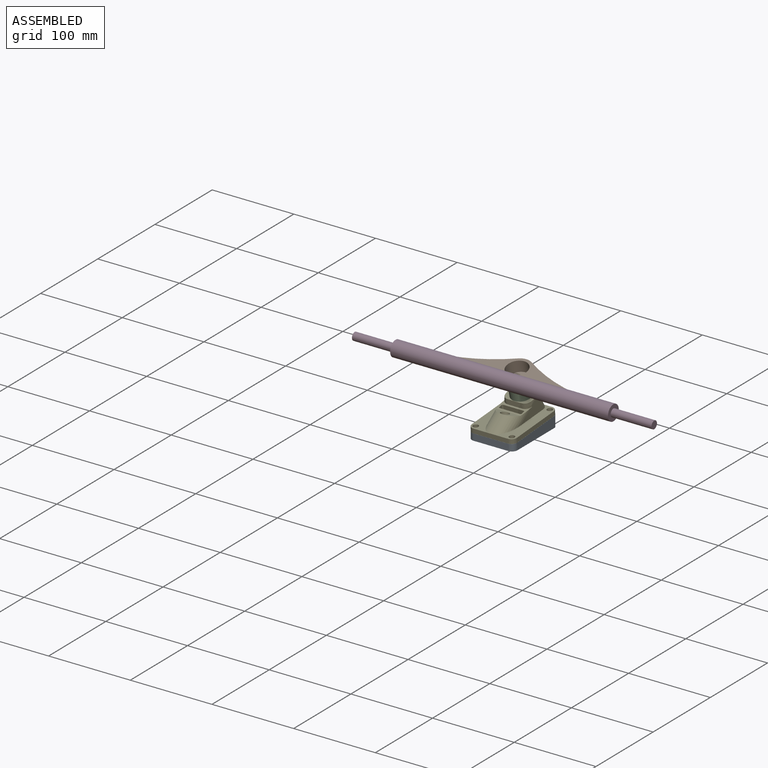
[diagram: assembled view]
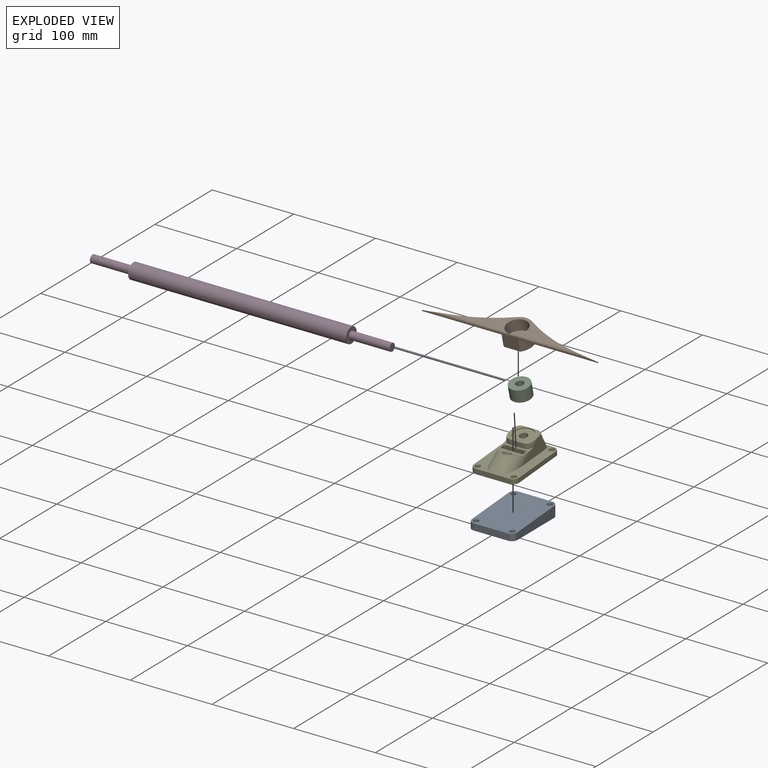
[diagram: exploded view]
GUIDED TOUR — MATED ASSEMBLY (Onshape document 29c120d8cdbc36005f48f472, AutoMate assembly 29c120d8cdbc36005f48f472_6aa7467d40bd575db55635c9_2fc4f1e1fb0d005b99490c8b_default)

This assembly has 5 components, labeled P0..P4 below (a component is one placed occurrence of a part; the same part can appear more than once), held together by 3 mates. A mate is a constraint between two components; its type names the relative motion it leaves free:
  FASTENED — locks the two components together rigidly (no relative motion).
Axis/direction vectors are unit vectors and 'through' points are millimeter coordinates, both in the assembly's world frame.

MATES
  1. FASTENED "Fastened 2": P2 <-> P4, direction (0.000, 0.232, -0.973) through (6.51, 32.08, 47.92) mm
  2. FASTENED "Fastened 1": P0 <-> P4, direction (0.000, -0.074, 0.997) through (28.69, -16.08, 21.23) mm
  3. FASTENED "Fastened 3": P2 <-> P1, direction (0.000, -0.232, 0.973) through (6.51, 28.58, 62.62) mm

ASSEMBLY ORDER
  1. P2 — the base component [order verified]
  2. P1 [order verified]
  3. P3 [order verified]
  4. P4 [order verified]
  5. P0 [order verified]
Order-tag legend:
  [order verified] — this step's position reverses a verified removal order: the component was checked to insert without passing through the ones already placed.

Of the 5 components, 3 carry the full construction recipe — the FeatureScript program that regenerates the part's solid from scratch; the rest are supplied as boundary geometry only.
Each toured component is shown spotlighted twice — in the assembled view, then in the exploded view, where a leader line traces a displaced component back to its assembled socket (saturated green if recipe-attached, orange if geometry-only; every other component desaturated gray) — followed by its recipe or geometry summary and the mates that hold it.
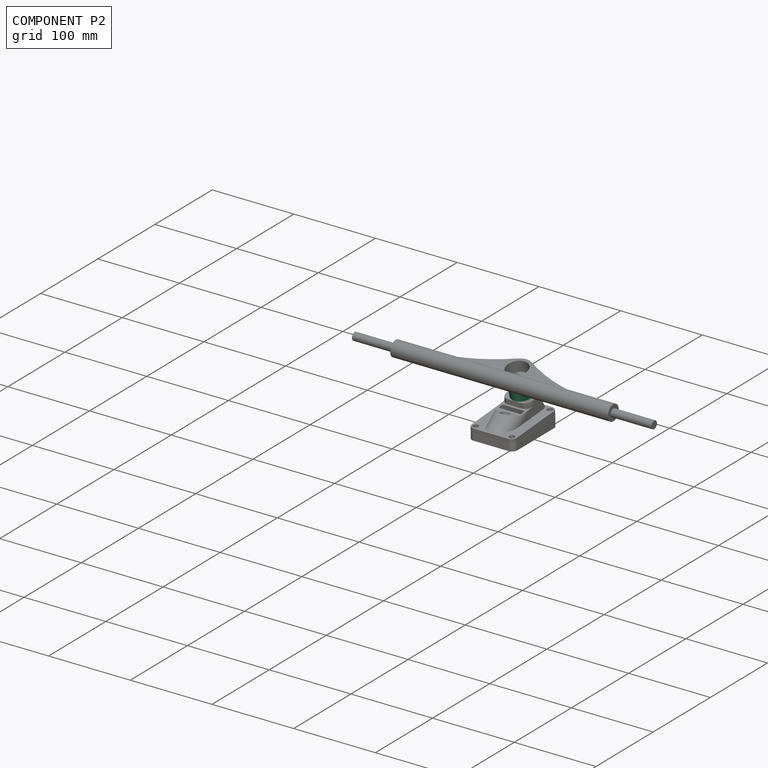
[diagram: component P2 — assembled]
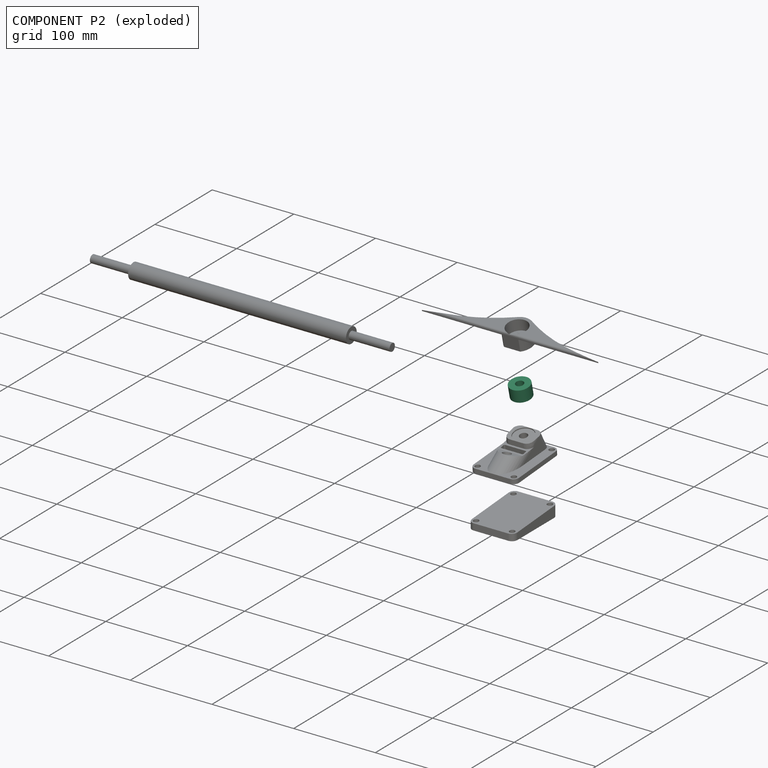
[diagram: component P2 — exploded]
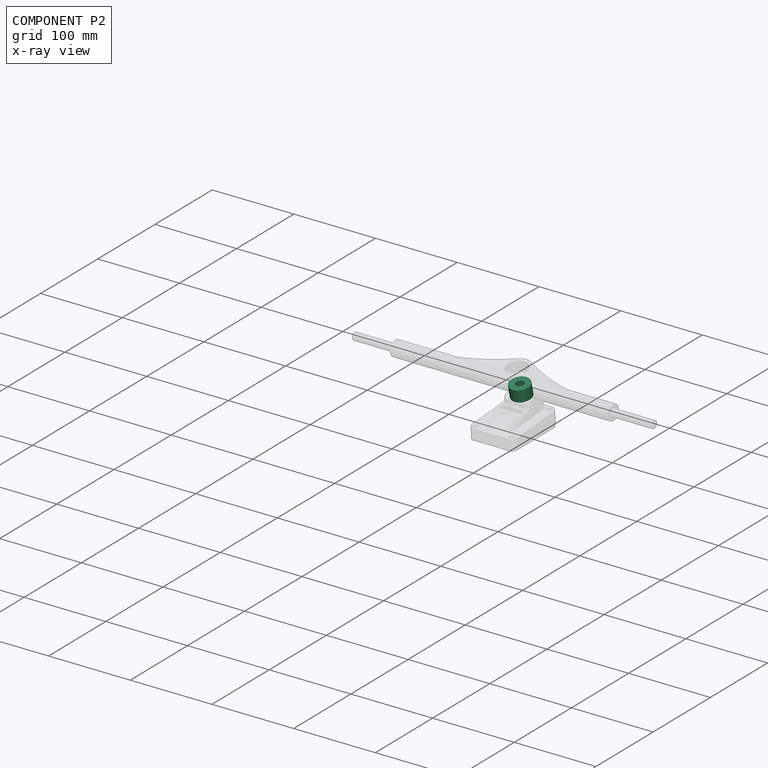
[diagram: component P2 — x-ray view]
COMPONENT P2 — recipe-attached (CADFS 00253057, mesh-verified: the recipe's output STEP matches this component's geometry to below the mesh-comparison resolution (tessellation chordal tolerance ~0.0559 mm)).
Held by: FASTENED mate "Fastened 2" to P4; FASTENED mate "Fastened 3" to P1.
Construction recipe (FeatureScript — the CAD program that rebuilds this solid; sketch coordinates are in the units given by the * unit suffixes, e.g. mm):

FeatureScript 1511;
import(path : "onshape/std/geometry.fs", version : "1511.0");
import(path : "onshape/std/common.fs", version : "1511.0");
const mm = millimeter;
const VERTEX = EntityType.VERTEX;
const EDGE = EntityType.EDGE;
const FACE = EntityType.FACE;
const BODY = EntityType.BODY;
function v(x, y){return vector(x, y);}
function OD(order){return orderDisambiguation(order);}
function OSD(set){return originalSetDisambiguation(set);}
function TD(topology){return topologyDisambiguation(topology);}
function TDD(query){return trueDependencyDisambiguation(query);}
function sQuery(a, b, c) {return sketchEntityQuery(a, b, c);}

annotation { "Feature Type Name" : "Feature", "Feature Type Description" : "" }
export const myFeature = defineFeature(function(context is Context, id is Id, definition is map)
    precondition{}
    {
        {
            var Q0;
            Q0=qCreatedBy(makeId("Top.planeOp"),FACE);
            var sketch = newSketch(context, id + "F0", { "sketchPlane" : qUnion([Q0])});
            skCircle(sketch, "E0", {"center": v(0, 0) * mm, "radius": 12.07 * mm});
            skCircle(sketch, "E1", {"center": v(0, 0) * mm, "radius": 4.76 * mm});
            skSolve(sketch);
        }
        {
            var Q0;
            Q0 = qSketchRegion(id + "F0", true);
            extrude(context, id + "F1", {"entities" : qUnion([Q0]), "depth" : 15.1 * mm});
        }
    });
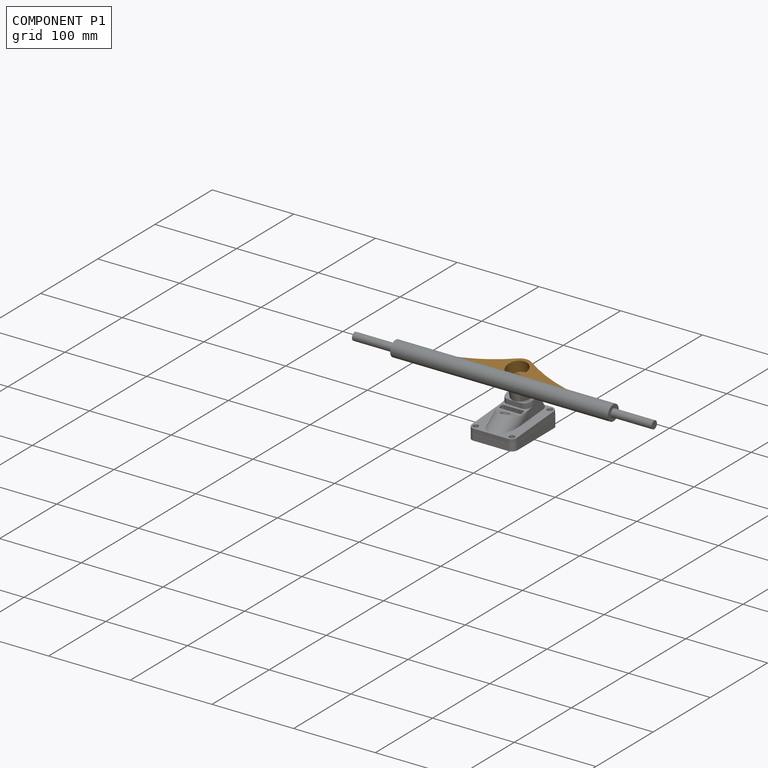
[diagram: component P1 — assembled]
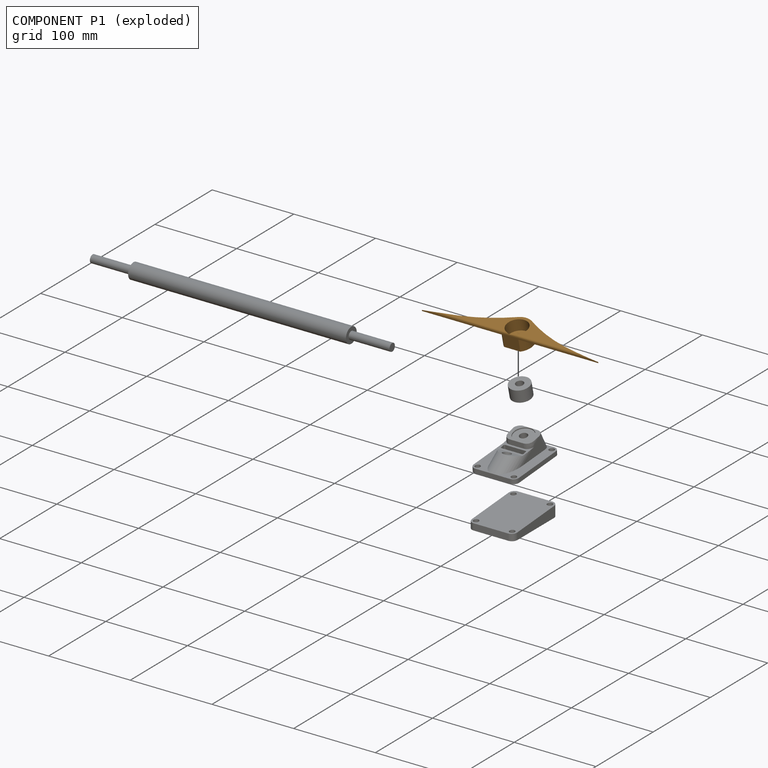
[diagram: component P1 — exploded]
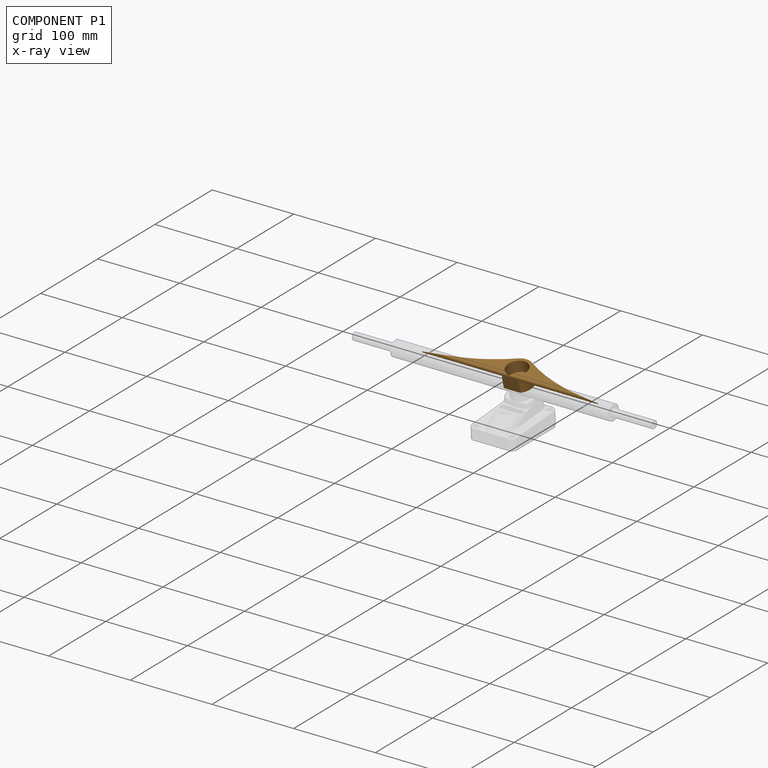
[diagram: component P1 — x-ray view]
COMPONENT P1 — geometry summary (no construction recipe available for this part):
  bounding box: 215.9 x 29.7 x 19.1 mm
  B-rep topology: 1 solid, 12 faces, 60 edges
  volume: 12977 mm^3 (11% of its bounding box)
  symmetry: mirror-symmetric across its x mid-plane
Held by: FASTENED mate "Fastened 3" to P2.
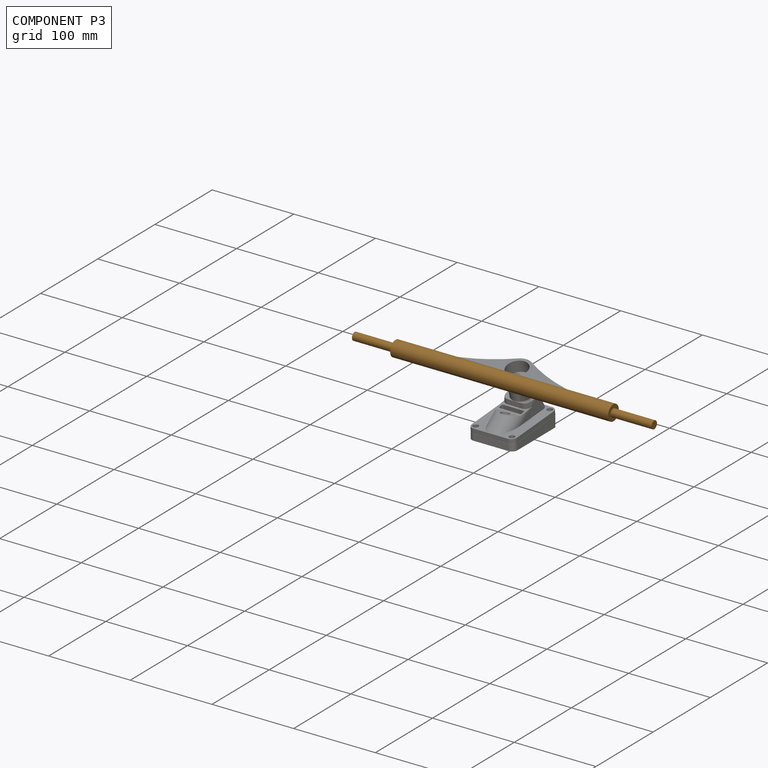
[diagram: component P3 — assembled]
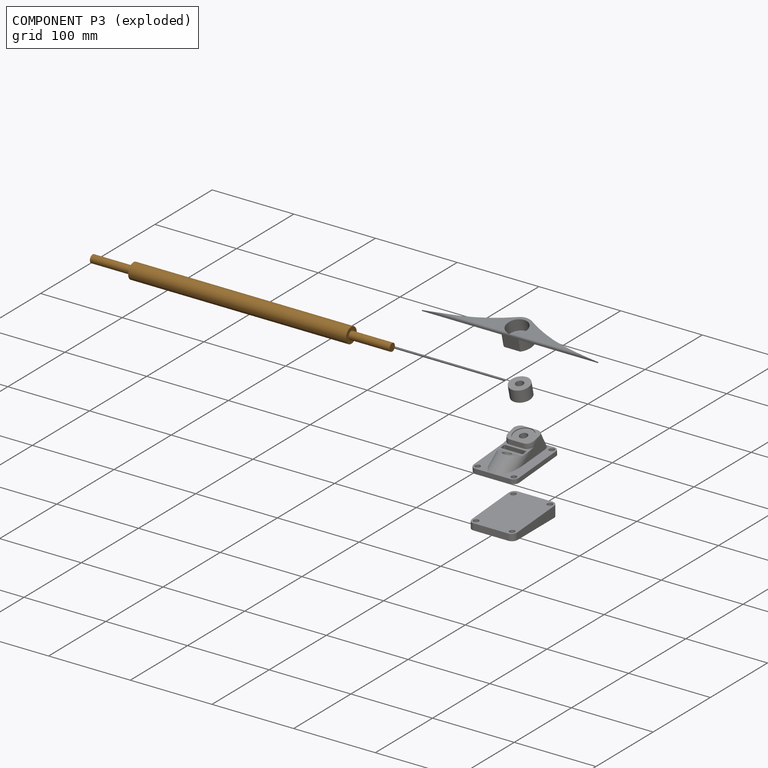
[diagram: component P3 — exploded]
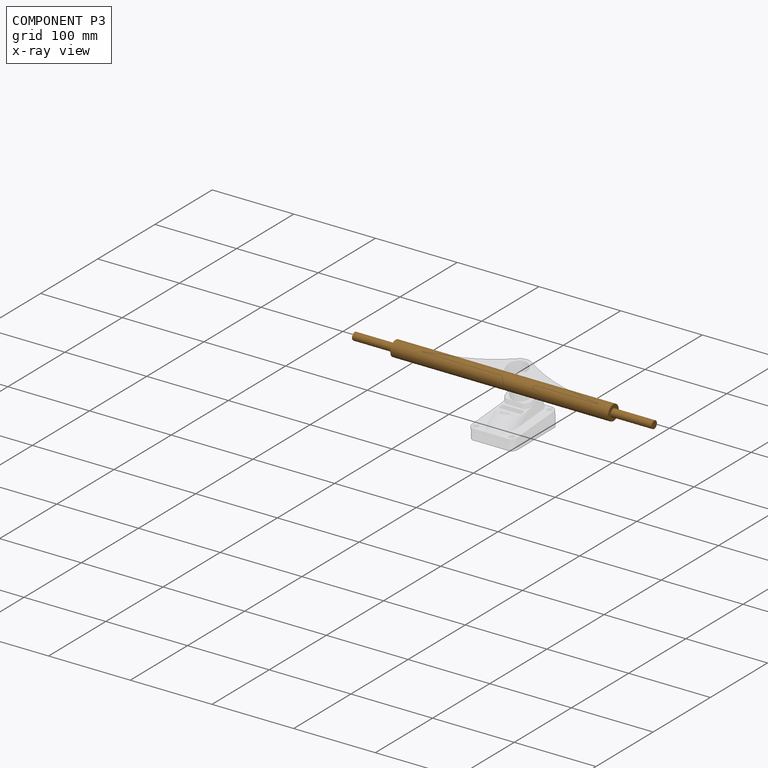
[diagram: component P3 — x-ray view]
COMPONENT P3 — geometry summary (no construction recipe available for this part):
  bounding box: 366.8 x 18.9 x 18.9 mm
  B-rep topology: 1 solid, 7 faces, 18 edges
  volume: 82136 mm^3 (63% of its bounding box)
  symmetry: revolution-symmetric about the x axis through its bounding-box center; 2-fold rotationally symmetric about the y axis; 2-fold rotationally symmetric about the z axis; mirror-symmetric across its x mid-plane, y mid-plane, z mid-plane
Held by: no mates (free).
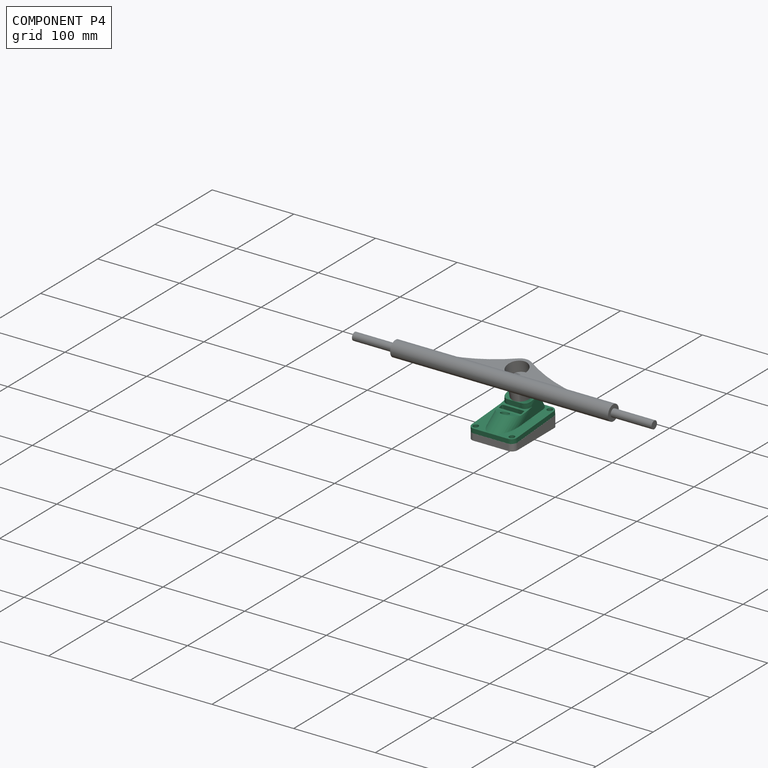
[diagram: component P4 — assembled]
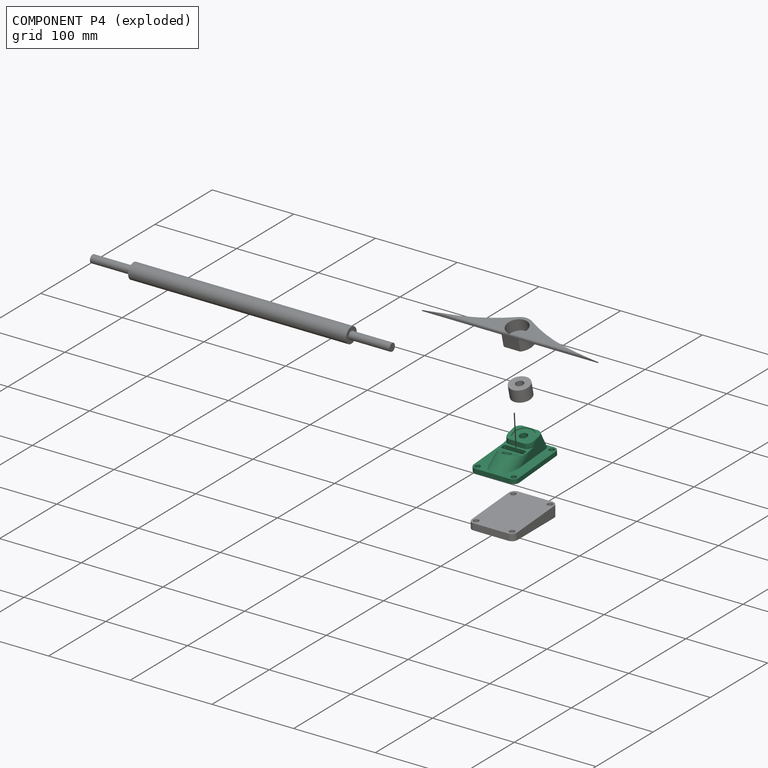
[diagram: component P4 — exploded]
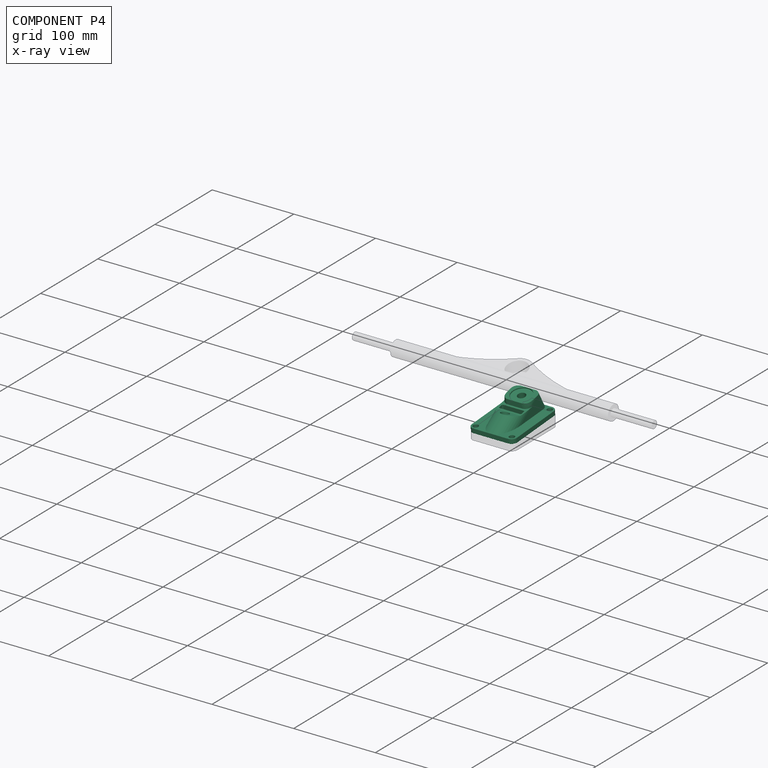
[diagram: component P4 — x-ray view]
COMPONENT P4 — recipe-attached (CADFS 00249483, mesh-verified: the recipe's output STEP matches this component's geometry to below the mesh-comparison resolution (tessellation chordal tolerance ~0.148 mm)).
Held by: FASTENED mate "Fastened 2" to P2; FASTENED mate "Fastened 1" to P0.
Construction recipe (FeatureScript — the CAD program that rebuilds this solid; sketch coordinates are in the units given by the * unit suffixes, e.g. mm):

FeatureScript 1511;
import(path : "onshape/std/geometry.fs", version : "1511.0");
import(path : "onshape/std/common.fs", version : "1511.0");
const mm = millimeter;
const VERTEX = EntityType.VERTEX;
const EDGE = EntityType.EDGE;
const FACE = EntityType.FACE;
const BODY = EntityType.BODY;
function v(x, y){return vector(x, y);}
function OD(order){return orderDisambiguation(order);}
function OSD(set){return originalSetDisambiguation(set);}
function TD(topology){return topologyDisambiguation(topology);}
function TDD(query){return trueDependencyDisambiguation(query);}
function sQuery(a, b, c) {return sketchEntityQuery(a, b, c);}

annotation { "Feature Type Name" : "Feature", "Feature Type Description" : "" }
export const myFeature = defineFeature(function(context is Context, id is Id, definition is map)
    precondition{}
    {
        {
            var Q0;
            Q0=qCreatedBy(makeId("Top.planeOp"),FACE);
            var sketch = newSketch(context, id + "F0", { "sketchPlane" : qUnion([Q0])});
            skLineSegment(sketch, "E0.bottom", {"start": v(-21.17, 38.73) * mm, "end": v(21.17, 38.73) * mm});
            skLineSegment(sketch, "E0.top", {"start": v(-21.17, -38.73) * mm, "end": v(21.17, -38.73) * mm});
            skLineSegment(sketch, "E0.left", {"start": v(-27.77, 32.13) * mm, "end": v(-27.77, -32.13) * mm});
            skLineSegment(sketch, "E0.right", {"start": v(27.77, 32.13) * mm, "end": v(27.77, -32.13) * mm});
            skPoint(sketch, "E1.visualSharp", {"position": v(-27.77, 38.73) * mm});
            skArc(sketch, "E1.filletArc", {"start": v(-21.17, 38.73) * mm, "mid": v(-25.84, 36.8) * mm, "end": v(-27.77, 32.13) * mm});
            skPoint(sketch, "E2.visualSharp", {"position": v(27.77, 38.73) * mm});
            skArc(sketch, "E2.filletArc", {"start": v(27.77, 32.13) * mm, "mid": v(25.84, 36.8) * mm, "end": v(21.17, 38.74) * mm});
            skPoint(sketch, "E3.visualSharp", {"position": v(27.77, -38.73) * mm});
            skArc(sketch, "E3.filletArc", {"start": v(21.17, -38.73) * mm, "mid": v(25.84, -36.8) * mm, "end": v(27.77, -32.13) * mm});
            skPoint(sketch, "E4.visualSharp", {"position": v(-27.77, -38.73) * mm});
            skArc(sketch, "E4.filletArc", {"start": v(-27.77, -32.13) * mm, "mid": v(-25.84, -36.8) * mm, "end": v(-21.17, -38.74) * mm});
            skSolve(sketch);
        }
        {
            var Q0;
            Q0 = qSketchRegion(id + "F0", true);
            extrude(context, id + "F1", {"entities" : qUnion([Q0]), "depth" : 5.6 * mm});
        }
        {
            var Q0;
            Q0=makeQuery(id+"F1.opExtrude","CAP_FACE",FACE,{"disambiguationData":[OSD([sQuery(id+"F0.wireOp",EDGE,"E0.bottom"),sQuery(id+"F0.wireOp",EDGE,"E0.top"),sQuery(id+"F0.wireOp",EDGE,"E0.left"),sQuery(id+"F0.wireOp",EDGE,"E0.right"),sQuery(id+"F0.wireOp",EDGE,"E1.filletArc"),sQuery(id+"F0.wireOp",EDGE,"E2.filletArc"),sQuery(id+"F0.wireOp",EDGE,"E3.filletArc"),sQuery(id+"F0.wireOp",EDGE,"E4.filletArc")])],"isStart":false});
            var sketch = newSketch(context, id + "F2", { "sketchPlane" : qUnion([Q0])});
            skPoint(sketch, "E5", {"position": v(-22.19, 33.15) * mm});
            skPoint(sketch, "E6", {"position": v(22.19, 33.15) * mm});
            skPoint(sketch, "E7", {"position": v(22.19, -33.15) * mm});
            skPoint(sketch, "E8", {"position": v(-22.19, -33.15) * mm});
            skSolve(sketch);
        }
        {
            var Q0;
            Q0=sQuery(id+"F2.wireOp",VERTEX,"E5");
            var Q1;
            Q1=sQuery(id+"F2.wireOp",VERTEX,"E6");
            var Q2;
            Q2=sQuery(id+"F2.wireOp",VERTEX,"E7");
            var Q3;
            Q3=sQuery(id+"F2.wireOp",VERTEX,"E8");
            var Q4;
            Q4=makeQuery(id+"F1.opExtrude","SWEPT_BODY",BODY,{"disambiguationData":[OSD([sQuery(id+"F0.wireOp",EDGE,"E0.bottom"),sQuery(id+"F0.wireOp",EDGE,"E0.top"),sQuery(id+"F0.wireOp",EDGE,"E0.left"),sQuery(id+"F0.wireOp",EDGE,"E0.right"),sQuery(id+"F0.wireOp",EDGE,"E1.filletArc"),sQuery(id+"F0.wireOp",EDGE,"E2.filletArc"),sQuery(id+"F0.wireOp",EDGE,"E3.filletArc"),sQuery(id+"F0.wireOp",EDGE,"E4.filletArc")])]});
            hole(context, id + "F3", {"style" : HoleStyle.SIMPLE, "endStyle" : HoleEndStyle.THROUGH, "holeDiameter" : 6.6 * mm, "tappedDepth" : 12.7 * mm, "tapClearance" : 3, "locations" : qUnion([Q0, Q1, Q2, Q3]), "scope" : qUnion([Q4])});
        }
        {
            var Q0;
            Q0=qCreatedBy(makeId("Right.planeOp"),FACE);
            var sketch = newSketch(context, id + "F4", { "sketchPlane" : qUnion([Q0])});
            skLineSegment(sketch, "E9", {"start": v(-38.73, 5.59) * mm, "end": v(-18.41, 18.29) * mm});
            skLineSegment(sketch, "E10", {"start": v(-18.41, 18.29) * mm, "end": v(-6.98, 15.11) * mm});
            skLineSegment(sketch, "E11", {"start": v(-6.98, 15.11) * mm, "end": v(4.45, 16.38) * mm});
            skLineSegment(sketch, "E12", {"start": v(4.45, 22.35) * mm, "end": v(28.83, 26.29) * mm});
            skLineSegment(sketch, "E13", {"start": v(28.83, 26.29) * mm, "end": v(38.73, 5.59) * mm});
            skLineSegment(sketch, "E14", {"start": v(4.45, 22.35) * mm, "end": v(4.45, 16.38) * mm});
            skLineSegment(sketch, "E15", {"start": v(-38.73, 5.59) * mm, "end": v(38.73, 5.59) * mm});
            skSolve(sketch);
        }
        {
            var Q0;
            Q0 = qSketchRegion(id + "F4", true);
            extrude(context, id + "F5", {"entities" : qUnion([Q0]), "operationType" : NewBodyOperationType.ADD, "endBound" : BoundingType.SYMMETRIC, "depth" : 32.5 * mm});
        }
        {
            var Q0;
            Q0=makeQuery(id+"F5.opExtrude","SWEPT_FACE",FACE,{"disambiguationData":[OSD([sQuery(id+"F4.wireOp",EDGE,"E11")])]});
            var sketch = newSketch(context, id + "F6", { "sketchPlane" : qUnion([Q0])});
            skLineSegment(sketch, "E16.0", {"start": v(-13.72, 3.69) * mm, "end": v(-13.72, -2.73) * mm});
            skLineSegment(sketch, "E16.1", {"start": v(13.72, 3.69) * mm, "end": v(-13.72, 3.69) * mm});
            skLineSegment(sketch, "E16.2", {"start": v(13.72, -2.73) * mm, "end": v(13.72, 3.69) * mm});
            skLineSegment(sketch, "E16.3", {"start": v(-13.72, -2.73) * mm, "end": v(13.72, -2.73) * mm});
            skSolve(sketch);
        }
        {
            var Q0;
            Q0 = qSketchRegion(id + "F6", true);
            extrude(context, id + "F7", {"entities" : qUnion([Q0]), "operationType" : NewBodyOperationType.REMOVE, "oppositeDirection" : true, "depth" : 6.35 * mm});
        }
        {
            var Q0;
            Q0=makeQuery(id+"F5.opExtrude","CAP_EDGE",EDGE,{"disambiguationData":[OSD([sQuery(id+"F4.wireOp",EDGE,"E9")])],"isStart":true});
            var Q1;
            Q1=makeQuery(id+"F5.opExtrude","CAP_EDGE",EDGE,{"disambiguationData":[OSD([sQuery(id+"F4.wireOp",EDGE,"E9")])],"isStart":false});
            fillet(context, id + "F8", {"entities" : qUnion([Q0, Q1]), "radius" : 15.24 * mm, "tangentPropagation" : true, "allowEdgeOverflow" : false});
        }
        {
            var Q0;
            Q0=makeQuery(id+"F7.boolean.opBoolean","COPY",EDGE,{"derivedFrom":makeQuery(id+"F7.opExtrude","SWEPT_EDGE",EDGE,{"disambiguationData":[OSD([sQuery(id+"F6.wireOp",EDGE,"E16.1"),sQuery(id+"F6.wireOp",EDGE,"E16.2")])]})});
            var Q1;
            Q1=makeQuery(id+"F7.boolean.opBoolean","COPY",EDGE,{"derivedFrom":makeQuery(id+"F7.opExtrude","SWEPT_EDGE",EDGE,{"disambiguationData":[OSD([sQuery(id+"F6.wireOp",EDGE,"E16.2"),sQuery(id+"F6.wireOp",EDGE,"E16.3")])]})});
            var Q2;
            Q2=makeQuery(id+"F7.boolean.opBoolean","COPY",EDGE,{"derivedFrom":makeQuery(id+"F7.opExtrude","SWEPT_EDGE",EDGE,{"disambiguationData":[OSD([sQuery(id+"F6.wireOp",EDGE,"E16.0"),sQuery(id+"F6.wireOp",EDGE,"E16.1")])]})});
            var Q3;
            Q3=makeQuery(id+"F7.boolean.opBoolean","COPY",EDGE,{"derivedFrom":makeQuery(id+"F7.opExtrude","SWEPT_EDGE",EDGE,{"disambiguationData":[OSD([sQuery(id+"F6.wireOp",EDGE,"E16.0"),sQuery(id+"F6.wireOp",EDGE,"E16.3")])]})});
            fillet(context, id + "F9", {"entities" : qUnion([Q0, Q1, Q2, Q3]), "radius" : 1.27 * mm, "tangentPropagation" : true, "allowEdgeOverflow" : false});
        }
        {
            var Q0;
            Q0=makeQuery(id+"F5.opExtrude","CAP_EDGE",EDGE,{"disambiguationData":[OSD([sQuery(id+"F4.wireOp",EDGE,"E13")])],"isStart":false});
            var Q1;
            Q1=makeQuery(id+"F8.opFillet","BLEND_EDGE",EDGE,{"blendedFrom":[makeQuery(id+"F5.opExtrude","CAP_EDGE",EDGE,{"disambiguationData":[OSD([sQuery(id+"F4.wireOp",EDGE,"E9")])],"isStart":false}),makeQuery(id+"F5.opExtrude","SWEPT_FACE",FACE,{"disambiguationData":[OSD([sQuery(id+"F4.wireOp",EDGE,"E14")])]})],"blendedInto":[makeQuery(id+"F5.opExtrude","SWEPT_FACE",FACE,{"disambiguationData":[OSD([sQuery(id+"F4.wireOp",EDGE,"E14")])]})]});
            var Q2;
            Q2=makeQuery(id+"F8.opFillet","BLEND_EDGE",EDGE,{"blendedFrom":[makeQuery(id+"F5.opExtrude","CAP_EDGE",EDGE,{"disambiguationData":[OSD([sQuery(id+"F4.wireOp",EDGE,"E9")])],"isStart":true}),makeQuery(id+"F5.opExtrude","SWEPT_FACE",FACE,{"disambiguationData":[OSD([sQuery(id+"F4.wireOp",EDGE,"E14")])]})],"blendedInto":[makeQuery(id+"F5.opExtrude","SWEPT_FACE",FACE,{"disambiguationData":[OSD([sQuery(id+"F4.wireOp",EDGE,"E14")])]})]});
            var Q3;
            Q3=makeQuery(id+"F5.opExtrude","CAP_EDGE",EDGE,{"disambiguationData":[OSD([sQuery(id+"F4.wireOp",EDGE,"E13")])],"isStart":true});
            fillet(context, id + "F10", {"entities" : qUnion([Q0, Q1, Q2, Q3]), "radius" : 7.62 * mm, "tangentPropagation" : true, "allowEdgeOverflow" : false});
        }
        {
            var Q0;
            Q0=makeQuery(id+"F5.opExtrude","SWEPT_FACE",FACE,{"disambiguationData":[OSD([sQuery(id+"F4.wireOp",EDGE,"E12")])]});
            var sketch = newSketch(context, id + "F11", { "sketchPlane" : qUnion([Q0])});
            skCircle(sketch, "E17", {"center": v(0, 20.3) * mm, "radius": 4.76 * mm});
            skSolve(sketch);
        }
        {
            var Q0;
            Q0 = qSketchRegion(id + "F11", true);
            extrude(context, id + "F12", {"entities" : qUnion([Q0]), "operationType" : NewBodyOperationType.REMOVE, "oppositeDirection" : true, "depth" : 25.4 * mm});
        }
        {
            var Q0;
            Q0=makeQuery(id+"F5.opExtrude","SWEPT_FACE",FACE,{"disambiguationData":[OSD([sQuery(id+"F4.wireOp",EDGE,"E10")])]});
            var sketch = newSketch(context, id + "F13", { "sketchPlane" : qUnion([Q0])});
            skCircle(sketch, "E18", {"center": v(0, -16.7) * mm, "radius": 5.08 * mm});
            skSolve(sketch);
        }
        {
            var Q0;
            Q0 = qSketchRegion(id + "F13", true);
            extrude(context, id + "F14", {"entities" : qUnion([Q0]), "operationType" : NewBodyOperationType.REMOVE, "oppositeDirection" : true, "depth" : 12.7 * mm});
        }
        {
            var Q0;
            Q0=makeQuery(id+"F5.opExtrude","SWEPT_FACE",FACE,{"disambiguationData":[OSD([sQuery(id+"F4.wireOp",EDGE,"E12")])]});
            var sketch = newSketch(context, id + "F15", { "sketchPlane" : qUnion([Q0])});
            skCircle(sketch, "E19", {"center": v(0, 20.3) * mm, "radius": 12.06 * mm});
            skSolve(sketch);
        }
        {
            var Q0;
            Q0 = qSketchRegion(id + "F15", true);
            extrude(context, id + "F16", {"entities" : qUnion([Q0]), "operationType" : NewBodyOperationType.REMOVE, "oppositeDirection" : true, "depth" : 1.27 * mm});
        }
    });
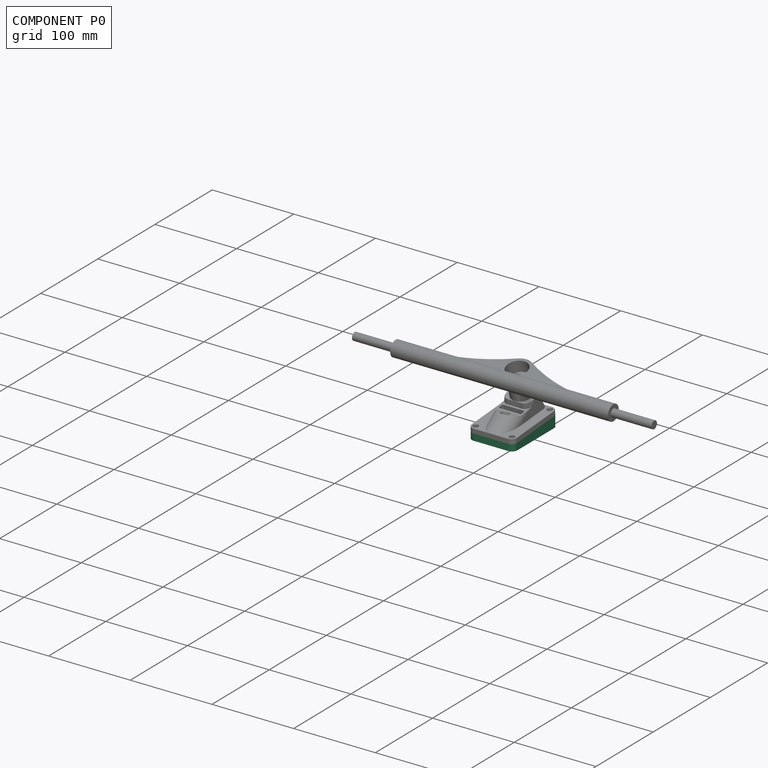
[diagram: component P0 — assembled]
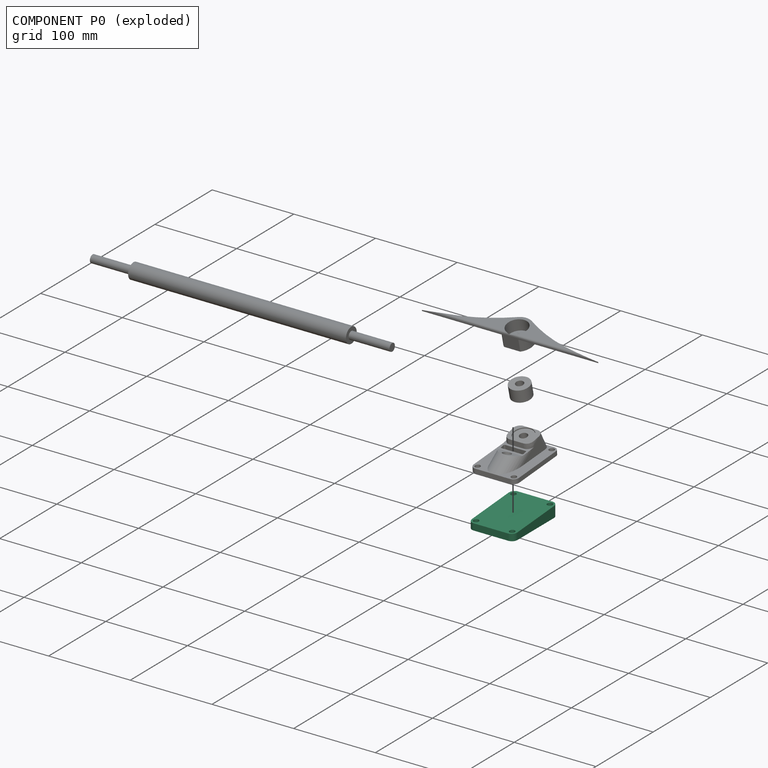
[diagram: component P0 — exploded]
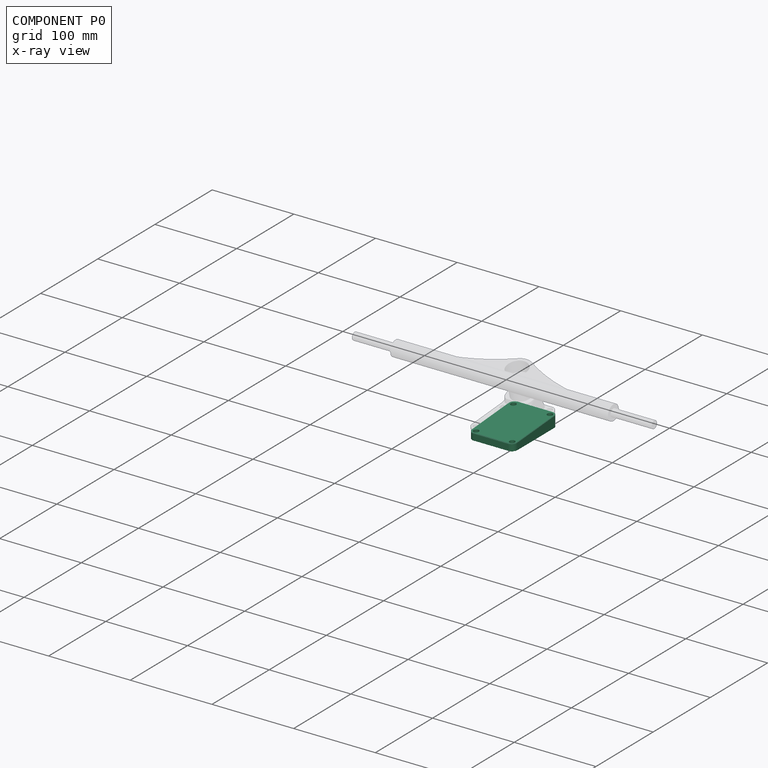
[diagram: component P0 — x-ray view]
COMPONENT P0 — recipe-attached (CADFS 00249475, mesh-verified: the recipe's output STEP matches this component's geometry to below the mesh-comparison resolution (tessellation chordal tolerance ~0.144 mm)).
Held by: FASTENED mate "Fastened 1" to P4.
Construction recipe (FeatureScript — the CAD program that rebuilds this solid; sketch coordinates are in the units given by the * unit suffixes, e.g. mm):

FeatureScript 1511;
import(path : "onshape/std/geometry.fs", version : "1511.0");
import(path : "onshape/std/common.fs", version : "1511.0");
const mm = millimeter;
const VERTEX = EntityType.VERTEX;
const EDGE = EntityType.EDGE;
const FACE = EntityType.FACE;
const BODY = EntityType.BODY;
function v(x, y){return vector(x, y);}
function OD(order){return orderDisambiguation(order);}
function OSD(set){return originalSetDisambiguation(set);}
function TD(topology){return topologyDisambiguation(topology);}
function TDD(query){return trueDependencyDisambiguation(query);}
function sQuery(a, b, c) {return sketchEntityQuery(a, b, c);}

annotation { "Feature Type Name" : "Feature", "Feature Type Description" : "" }
export const myFeature = defineFeature(function(context is Context, id is Id, definition is map)
    precondition{}
    {
        {
            var Q0;
            Q0=qCreatedBy(makeId("Right.planeOp"),FACE);
            var sketch = newSketch(context, id + "F0", { "sketchPlane" : qUnion([Q0])});
            skLineSegment(sketch, "E0", {"start": v(0, 8) * mm, "end": v(77.47, 13.72) * mm});
            skLineSegment(sketch, "E1", {"start": v(77.47, 13.72) * mm, "end": v(77.47, 0) * mm});
            skLineSegment(sketch, "E2", {"start": v(77.47, 0) * mm, "end": v(0, 0) * mm});
            skLineSegment(sketch, "E3", {"start": v(0, 0) * mm, "end": v(0, 8) * mm});
            skSolve(sketch);
        }
        {
            var Q0;
            Q0 = qSketchRegion(id + "F0", true);
            extrude(context, id + "F1", {"entities" : qUnion([Q0]), "endBound" : BoundingType.SYMMETRIC, "depth" : 55.55 * mm});
        }
        {
            var Q0;
            Q0=makeQuery(id+"F1.opExtrude","CAP_EDGE",EDGE,{"disambiguationData":[OSD([sQuery(id+"F0.wireOp",EDGE,"E3")])],"isStart":false});
            var Q1;
            Q1=makeQuery(id+"F1.opExtrude","CAP_EDGE",EDGE,{"disambiguationData":[OSD([sQuery(id+"F0.wireOp",EDGE,"E1")])],"isStart":false});
            var Q2;
            Q2=makeQuery(id+"F1.opExtrude","CAP_EDGE",EDGE,{"disambiguationData":[OSD([sQuery(id+"F0.wireOp",EDGE,"E1")])],"isStart":true});
            var Q3;
            Q3=makeQuery(id+"F1.opExtrude","CAP_EDGE",EDGE,{"disambiguationData":[OSD([sQuery(id+"F0.wireOp",EDGE,"E3")])],"isStart":true});
            fillet(context, id + "F2", {"entities" : qUnion([Q0, Q1, Q2, Q3]), "radius" : 6.6 * mm, "tangentPropagation" : true, "allowEdgeOverflow" : false});
        }
        {
            var Q0;
            Q0=makeQuery(id+"F1.opExtrude","SWEPT_FACE",FACE,{"disambiguationData":[OSD([sQuery(id+"F0.wireOp",EDGE,"E2")])]});
            var sketch = newSketch(context, id + "F3", { "sketchPlane" : qUnion([Q0])});
            skPoint(sketch, "E4", {"position": v(22.06, -5.71) * mm});
            skPoint(sketch, "E5", {"position": v(22.06, -71.76) * mm});
            skPoint(sketch, "E6", {"position": v(-22.06, -70.87) * mm});
            skPoint(sketch, "E7", {"position": v(-22.06, -5.71) * mm});
            skSolve(sketch);
        }
        {
            var Q0;
            Q0=sQuery(id+"F3.wireOp",VERTEX,"E4");
            var Q1;
            Q1=sQuery(id+"F3.wireOp",VERTEX,"E7");
            var Q2;
            Q2=sQuery(id+"F3.wireOp",VERTEX,"E5");
            var Q3;
            Q3=sQuery(id+"F3.wireOp",VERTEX,"E6");
            var Q4;
            Q4=makeQuery(id+"F1.opExtrude","SWEPT_BODY",BODY,{"disambiguationData":[OSD([sQuery(id+"F0.wireOp",EDGE,"E0"),sQuery(id+"F0.wireOp",EDGE,"E1"),sQuery(id+"F0.wireOp",EDGE,"E2"),sQuery(id+"F0.wireOp",EDGE,"E3")])]});
            hole(context, id + "F4", {"style" : HoleStyle.SIMPLE, "endStyle" : HoleEndStyle.THROUGH, "holeDiameter" : 6.6 * mm, "tappedDepth" : 12.7 * mm, "tapClearance" : 3, "locations" : qUnion([Q0, Q1, Q2, Q3]), "scope" : qUnion([Q4])});
        }
    });
PROVENANCE & LICENSES
Assembly (occurrences, transforms, mates, per-part STEP geometry): AutoMate dataset, Zenodo record 7776208, CC0.
Construction recipes: CADFS (HuggingFace VladPyatov/CADFS, CC-BY-4.0, layered over the ABC dataset), FeatureScript reconstruction programs keyed by ABC model id.
Join: ABC meta listings map ABC model id -> Onshape documentId; within a shared document, parts are matched by geometric signature (bounding-box dims + volume at 0.1% relative tolerance, exact B-rep face/solid counts).
Verification: 3 of this assembly's 5 components carry a recipe attachment, and every attachment is mesh-verified: the CADFS STEP and the AutoMate member STEP were compared as meshes in their shared local frame (symmetric sampled-point-to-mesh distance); worst across the 3 attachments: below the mesh-comparison resolution (tessellation chordal tolerance ~0.148 mm) on a 99 mm part.
Renders: orthographic iso camera (az 35 / el 25); the floor grid conveys scale (grid pitch printed in each image; no ruler). In the exploded view each component is displaced by its stored offset vector: the offsets alone carry the explosion direction (mate normal/axis signs are not orientation cues and do not encode it), and separation distances are assigned per mate-chain, not proportionally to assembly-order depth.
